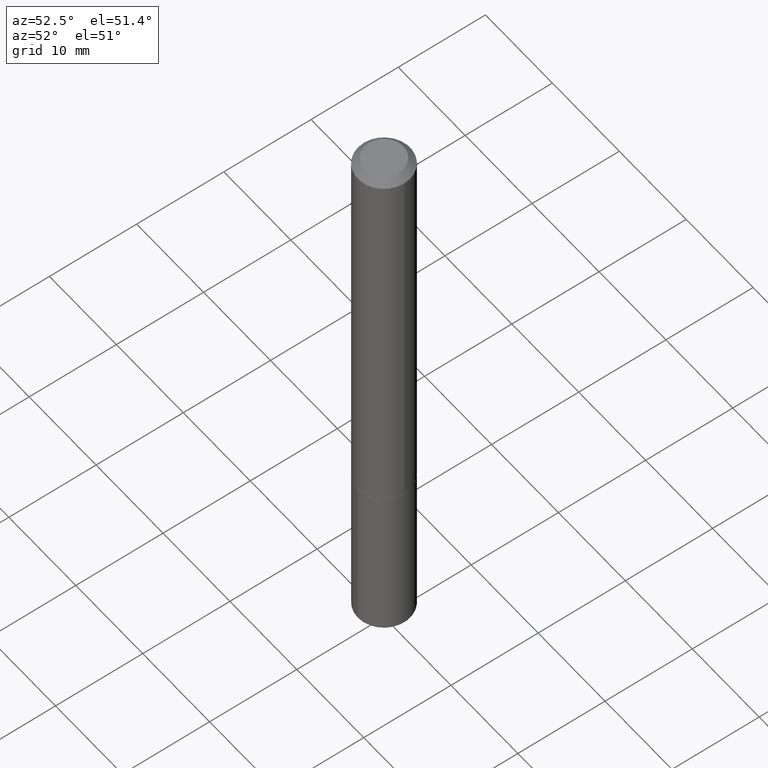
[diagram: clean part render]
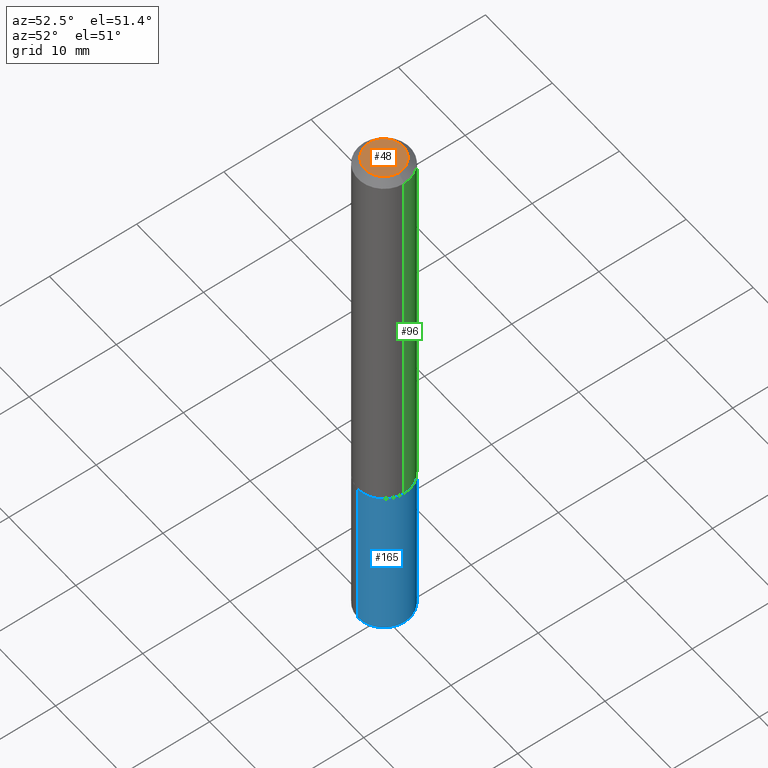
[diagram: same view with three faces highlighted in distinct colors, each labeled with its STEP entity id]
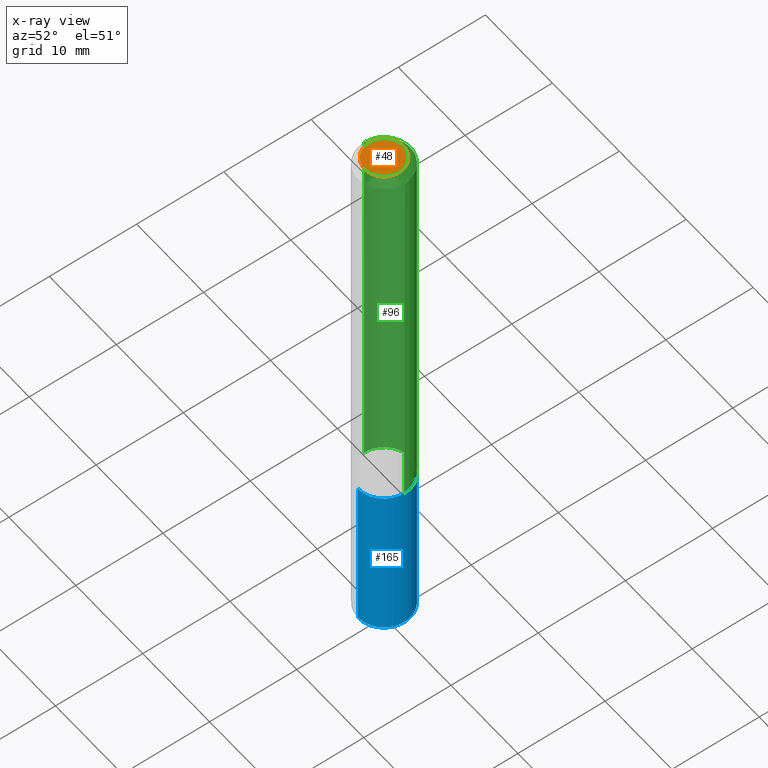
[diagram: x-ray of the same camera — body ghosted, the three highlighted faces saturated]
A machine part, auxiliary view with three faces highlighted in distinct colors.
The next image is the same camera in x-ray (body ghosted, the three faces saturated) — at least one of them is partly hidden behind the body in this view.
Their STEP definitions:

[orange] entity #48 — the highlighted planar face has unit normal (0, -0, -1).
#20 = ORIENTED_EDGE ( 'NONE', *, *, #208, .T. ) ;
#39 = DIRECTION ( 'NONE',  ( 1.000000000000000000, -6.982962677686266711E-15, 4.875959881687004012E-29 ) ) ;
#43 = DIRECTION ( 'NONE',  ( -2.445468806185136597E-29, 3.491481338843145583E-15, 1.000000000000000000 ) ) ;
#48 = ADVANCED_FACE ( 'NONE', ( #103 ), #220, .F. ) ;
#63 = CARTESIAN_POINT ( 'NONE',  ( 8.253766764526101525E-46, -1.178419146489205654E-31, -3.375126578450104991E-17 ) ) ;
#88 = AXIS2_PLACEMENT_3D ( 'NONE', #63, #43, #39 ) ;
#103 = FACE_OUTER_BOUND ( 'NONE', #269, .T. ) ;
#106 = CIRCLE ( 'NONE', #88, 0.08684999999999999665 ) ;
#145 = VERTEX_POINT ( 'NONE', #323 ) ;
#164 = CIRCLE ( 'NONE', #206, 0.08684999999999999665 ) ;
#206 = AXIS2_PLACEMENT_3D ( 'NONE', #348, #341, #275 ) ;
#208 = EDGE_CURVE ( 'NONE', #145, #273, #106, .T. ) ;
#217 = CARTESIAN_POINT ( 'NONE',  ( 0.08684999999999999665, -7.575839282410623033E-16, -3.375126578449627977E-17 ) ) ;
#220 = PLANE ( 'NONE',  #314 ) ;
#248 = CARTESIAN_POINT ( 'NONE',  ( 4.126883382263050762E-46, -5.892095732446028268E-32, -1.687563289225052496E-17 ) ) ;
#269 = EDGE_LOOP ( 'NONE', ( #20, #390 ) ) ;
#273 = VERTEX_POINT ( 'NONE', #217 ) ;
#275 = DIRECTION ( 'NONE',  ( 1.000000000000000000, -6.982962677686266711E-15, 4.875959881687004012E-29 ) ) ;
#283 = DIRECTION ( 'NONE',  ( 2.438088387897960049E-29, -3.491481338843145188E-15, -1.000000000000000000 ) ) ;
#307 = EDGE_CURVE ( 'NONE', #273, #145, #164, .T. ) ;
#314 = AXIS2_PLACEMENT_3D ( 'NONE', #248, #283, #373 ) ;
#323 = CARTESIAN_POINT ( 'NONE',  ( -0.08684999999999999665, 6.610247044764755977E-16, -3.375126578450548109E-17 ) ) ;
#341 = DIRECTION ( 'NONE',  ( -2.445468806185136597E-29, 3.491481338843145583E-15, 1.000000000000000000 ) ) ;
#348 = CARTESIAN_POINT ( 'NONE',  ( 8.253766764526101525E-46, -1.178419146489205654E-31, -3.375126578450104991E-17 ) ) ;
#373 = DIRECTION ( 'NONE',  ( -1.000000000000000000, 6.982962677686265922E-15, -4.876176775795935793E-29 ) ) ;
#390 = ORIENTED_EDGE ( 'NONE', *, *, #307, .T. ) ;

[blue] entity #165 — the highlighted cylindrical surface (edge-blend (fillet) strip) has radius 2.9997 mm, axis along (-0, 0, 1).
#9 = CARTESIAN_POINT ( 'NONE',  ( 8.391509709327404185E-16, 0.1180999999999910732, -2.550684502728868264 ) ) ;
#23 = EDGE_LOOP ( 'NONE', ( #207, #381, #151, #290 ) ) ;
#27 = VERTEX_POINT ( 'NONE', #9 ) ;
#34 = CIRCLE ( 'NONE', #57, 0.1181000000000000105 ) ;
#42 = AXIS2_PLACEMENT_3D ( 'NONE', #120, #233, #116 ) ;
#57 = AXIS2_PLACEMENT_3D ( 'NONE', #150, #332, #239 ) ;
#86 = CYLINDRICAL_SURFACE ( 'NONE', #42, 0.1180999999999999966 ) ;
#93 = FACE_OUTER_BOUND ( 'NONE', #23, .T. ) ;
#102 = CARTESIAN_POINT ( 'NONE',  ( 8.391509709327224719E-16, 0.1180999999999936823, -1.811000000000000387 ) ) ;
#116 = DIRECTION ( 'NONE',  ( -6.982962677686265922E-15, -1.000000000000000000, 4.626330217890369336E-15 ) ) ;
#117 = VERTEX_POINT ( 'NONE', #267 ) ;
#120 = CARTESIAN_POINT ( 'NONE',  ( 4.428744008001282238E-29, -6.323072704644935995E-15, -1.810999999999999943 ) ) ;
#126 = CARTESIAN_POINT ( 'NONE',  ( 4.428744008001282238E-29, -6.323072704644935995E-15, -1.810999999999999943 ) ) ;
#131 = LINE ( 'NONE', #102, #258 ) ;
#150 = CARTESIAN_POINT ( 'NONE',  ( 6.227033753365331904E-29, -8.920826570759473542E-15, -2.550684502728867376 ) ) ;
#151 = ORIENTED_EDGE ( 'NONE', *, *, #261, .F. ) ;
#163 = CARTESIAN_POINT ( 'NONE',  ( -8.246878922347036920E-16, -0.1181000000000063110, -1.810999999999999277 ) ) ;
#165 = ADVANCED_FACE ( 'NONE', ( #93 ), #86, .T. ) ;
#167 = EDGE_CURVE ( 'NONE', #292, #27, #34, .T. ) ;
#168 = AXIS2_PLACEMENT_3D ( 'NONE', #126, #188, #318 ) ;
#188 = DIRECTION ( 'NONE',  ( -2.431157795965363335E-29, 3.511975520009978246E-15, 1.000000000000000000 ) ) ;
#194 = EDGE_CURVE ( 'NONE', #292, #363, #230, .T. ) ;
#207 = ORIENTED_EDGE ( 'NONE', *, *, #167, .T. ) ;
#230 = LINE ( 'NONE', #354, #326 ) ;
#231 = EDGE_CURVE ( 'NONE', #27, #117, #131, .T. ) ;
#233 = DIRECTION ( 'NONE',  ( -2.431157795965363335E-29, 3.511975520009978246E-15, 1.000000000000000000 ) ) ;
#239 = DIRECTION ( 'NONE',  ( -6.982962677686265922E-15, -1.000000000000000000, 4.626330217890369336E-15 ) ) ;
#258 = VECTOR ( 'NONE', #280, 39.37007874015748143 ) ;
#261 = EDGE_CURVE ( 'NONE', #363, #117, #279, .T. ) ;
#267 = CARTESIAN_POINT ( 'NONE',  ( 8.391509709327405171E-16, 0.1180999999999936684, -1.811000000000000387 ) ) ;
#279 = CIRCLE ( 'NONE', #168, 0.1180999999999999966 ) ;
#280 = DIRECTION ( 'NONE',  ( -2.431157795965363055E-29, 3.511975520009978640E-15, 1.000000000000000000 ) ) ;
#290 = ORIENTED_EDGE ( 'NONE', *, *, #194, .F. ) ;
#292 = VERTEX_POINT ( 'NONE', #309 ) ;
#309 = CARTESIAN_POINT ( 'NONE',  ( -8.246878922346858440E-16, -0.1181000000000088923, -2.550684502728866931 ) ) ;
#318 = DIRECTION ( 'NONE',  ( -6.982962677686265922E-15, -1.000000000000000000, 4.626330217890369336E-15 ) ) ;
#326 = VECTOR ( 'NONE', #327, 39.37007874015748143 ) ;
#327 = DIRECTION ( 'NONE',  ( -2.431157795965363055E-29, 3.511975520009978640E-15, 1.000000000000000000 ) ) ;
#332 = DIRECTION ( 'NONE',  ( -2.431157795965363335E-29, 3.511975520009978246E-15, 1.000000000000000000 ) ) ;
#354 = CARTESIAN_POINT ( 'NONE',  ( -8.246878922347036920E-16, -0.1181000000000063110, -1.810999999999999277 ) ) ;
#363 = VERTEX_POINT ( 'NONE', #163 ) ;
#381 = ORIENTED_EDGE ( 'NONE', *, *, #231, .T. ) ;

[green] entity #96 — the highlighted cylindrical surface (edge-blend (fillet) strip) has radius 2.9997 mm, axis along (-0, 0, 1).
#1 = CARTESIAN_POINT ( 'NONE',  ( -0.1181000000000001215, 8.391509709326791832E-16, -5.809262341591049389E-30 ) ) ;
#10 = CARTESIAN_POINT ( 'NONE',  ( 0.1181000000000002326, -7.146014856210262754E-15, -1.810499999999999776 ) ) ;
#12 = CARTESIAN_POINT ( 'NONE',  ( 4.427521273598188876E-29, -6.321326963975513703E-15, -1.810499999999999776 ) ) ;
#38 = LINE ( 'NONE', #104, #140 ) ;
#40 = CYLINDRICAL_SURFACE ( 'NONE', #336, 0.1181000000000001215 ) ;
#45 = DIRECTION ( 'NONE',  ( -2.445468806185136597E-29, 3.491481338843145583E-15, 1.000000000000000000 ) ) ;
#47 = ORIENTED_EDGE ( 'NONE', *, *, #319, .F. ) ;
#52 = DIRECTION ( 'NONE',  ( -2.445468806185136597E-29, 3.491481338843145583E-15, 1.000000000000000000 ) ) ;
#55 = EDGE_LOOP ( 'NONE', ( #94, #91, #109, #47 ) ) ;
#69 = EDGE_CURVE ( 'NONE', #119, #294, #345, .T. ) ;
#72 = CARTESIAN_POINT ( 'NONE',  ( -0.1180999999999999966, -2.376066906974500838E-15, -0.03125000000000021511 ) ) ;
#73 = DIRECTION ( 'NONE',  ( 1.000000000000000000, -6.982962677686266711E-15, 0.000000000000000000 ) ) ;
#81 = DIRECTION ( 'NONE',  ( 1.000000000000000000, -6.982962677686266711E-15, 4.876176775795935793E-29 ) ) ;
#91 = ORIENTED_EDGE ( 'NONE', *, *, #148, .T. ) ;
#94 = ORIENTED_EDGE ( 'NONE', *, *, #374, .T. ) ;
#96 = ADVANCED_FACE ( 'NONE', ( #190 ), #40, .T. ) ;
#104 = CARTESIAN_POINT ( 'NONE',  ( 0.1181000000000001215, -8.246878922347489529E-16, 5.758764772215006046E-30 ) ) ;
#109 = ORIENTED_EDGE ( 'NONE', *, *, #69, .F. ) ;
#119 = VERTEX_POINT ( 'NONE', #329 ) ;
#128 = DIRECTION ( 'NONE',  ( 1.000000000000000000, -6.982962677686266711E-15, 0.000000000000000000 ) ) ;
#129 = AXIS2_PLACEMENT_3D ( 'NONE', #133, #45, #73 ) ;
#133 = CARTESIAN_POINT ( 'NONE',  ( 7.642090019328603538E-31, -1.091087918388490390E-16, -0.03125000000000021511 ) ) ;
#140 = VECTOR ( 'NONE', #160, 39.37007874015748143 ) ;
#146 = CARTESIAN_POINT ( 'NONE',  ( 0.000000000000000000, 0.000000000000000000, 0.000000000000000000 ) ) ;
#148 = EDGE_CURVE ( 'NONE', #388, #294, #365, .T. ) ;
#160 = DIRECTION ( 'NONE',  ( -2.445468806185136877E-29, 3.491481338843145188E-15, 1.000000000000000000 ) ) ;
#190 = FACE_OUTER_BOUND ( 'NONE', #55, .T. ) ;
#282 = DIRECTION ( 'NONE',  ( -2.445468806185136597E-29, 3.491481338843145583E-15, 1.000000000000000000 ) ) ;
#285 = VECTOR ( 'NONE', #304, 39.37007874015748143 ) ;
#294 = VERTEX_POINT ( 'NONE', #72 ) ;
#304 = DIRECTION ( 'NONE',  ( -2.445468806185136877E-29, 3.491481338843145188E-15, 1.000000000000000000 ) ) ;
#319 = EDGE_CURVE ( 'NONE', #366, #119, #38, .T. ) ;
#329 = CARTESIAN_POINT ( 'NONE',  ( 0.1180999999999999966, -9.337966840735971660E-16, -0.03125000000000021511 ) ) ;
#336 = AXIS2_PLACEMENT_3D ( 'NONE', #146, #52, #81 ) ;
#345 = CIRCLE ( 'NONE', #129, 0.1180999999999999966 ) ;
#349 = CIRCLE ( 'NONE', #385, 0.1181000000000002326 ) ;
#365 = LINE ( 'NONE', #1, #285 ) ;
#366 = VERTEX_POINT ( 'NONE', #10 ) ;
#372 = CARTESIAN_POINT ( 'NONE',  ( -0.1181000000000002326, -5.482175993042833139E-15, -1.810499999999999776 ) ) ;
#374 = EDGE_CURVE ( 'NONE', #366, #388, #349, .T. ) ;
#385 = AXIS2_PLACEMENT_3D ( 'NONE', #12, #282, #128 ) ;
#388 = VERTEX_POINT ( 'NONE', #372 ) ;